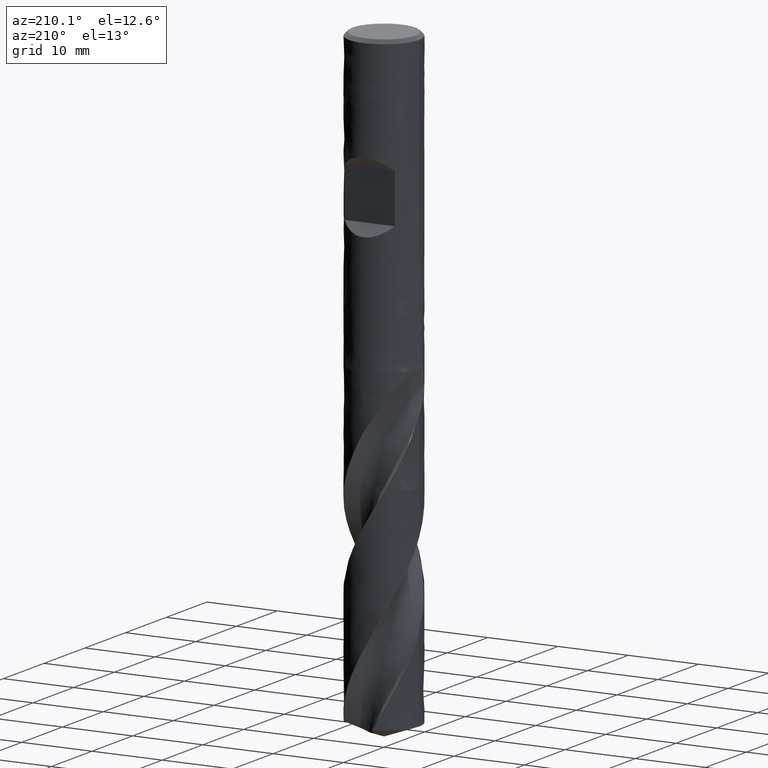
[diagram: clean part render]
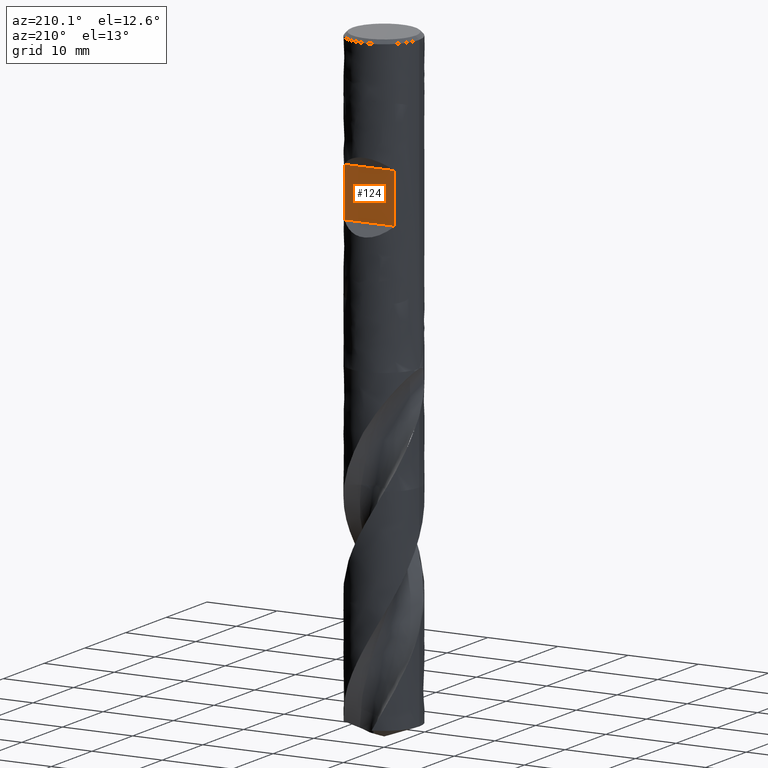
[diagram: same view with one face highlighted and labeled with its STEP entity id]
A machine part, auxiliary view. The second image highlights one B-rep face of the part: STEP entity #124.
In plain terms, the highlighted planar face has unit normal (0, 1, 0).
Its self-contained STEP definition (entity closure, byte-faithful):
#124 = ADVANCED_FACE('', (#125), #159, .T.);
#125 = FACE_OUTER_BOUND('', #126, .T.);
#126 = EDGE_LOOP('', (#127, #137, #145, #153));
#127 = ORIENTED_EDGE('', *, *, #128, .T.);
#128 = EDGE_CURVE('', #129, #131, #133, .T.);
#129 = VERTEX_POINT('', #130);
#130 = CARTESIAN_POINT('', (3.57071421427141, 3.5, -16.5));
#131 = VERTEX_POINT('', #132);
#132 = CARTESIAN_POINT('', (3.57071421427142, 3.5, -23.5));
#133 = LINE('', #134, #135);
#134 = CARTESIAN_POINT('', (3.57071421427141, 3.5, -16.5));
#135 = VECTOR('', #136, 7.);
#136 = DIRECTION('', (3.10862446895044E-15, 4.44089209850063E-16, -7.));
#137 = ORIENTED_EDGE('', *, *, #138, .T.);
#138 = EDGE_CURVE('', #131, #139, #141, .T.);
#139 = VERTEX_POINT('', #140);
#140 = CARTESIAN_POINT('', (-3.57071421427142, 3.5, -23.5));
#141 = LINE('', #142, #143);
#142 = CARTESIAN_POINT('', (3.57071421427142, 3.5, -23.5));
#143 = VECTOR('', #144, 7.14142842854283);
#144 = DIRECTION('', (-7.14142842854283, 4.44089209850063E-16, 0.));
#145 = ORIENTED_EDGE('', *, *, #146, .F.);
#146 = EDGE_CURVE('', #147, #139, #149, .T.);
#147 = VERTEX_POINT('', #148);
#148 = CARTESIAN_POINT('', (-3.57071421427142, 3.5, -16.5));
#149 = LINE('', #150, #151);
#150 = CARTESIAN_POINT('', (-3.57071421427142, 3.5, -16.5));
#151 = VECTOR('', #152, 7.);
#152 = DIRECTION('', (-1.77635683940025E-15, 8.88178419700125E-16, -7.));
#153 = ORIENTED_EDGE('', *, *, #154, .F.);
#154 = EDGE_CURVE('', #129, #147, #155, .T.);
#155 = LINE('', #156, #157);
#156 = CARTESIAN_POINT('', (3.57071421427141, 3.5, -16.5));
#157 = VECTOR('', #158, 7.14142842854283);
#158 = DIRECTION('', (-7.14142842854283, 4.44089209850063E-16, 0.));
#159 = PLANE('', #160);
#160 = AXIS2_PLACEMENT_3D('', #161, #162, #163);
#161 = CARTESIAN_POINT('', (5., 3.5, -23.5));
#162 = DIRECTION('', (8.88178419700125E-17, 1., 6.34413156928661E-17));
#163 = DIRECTION('', (-1., 8.88178419700125E-17, 0.));